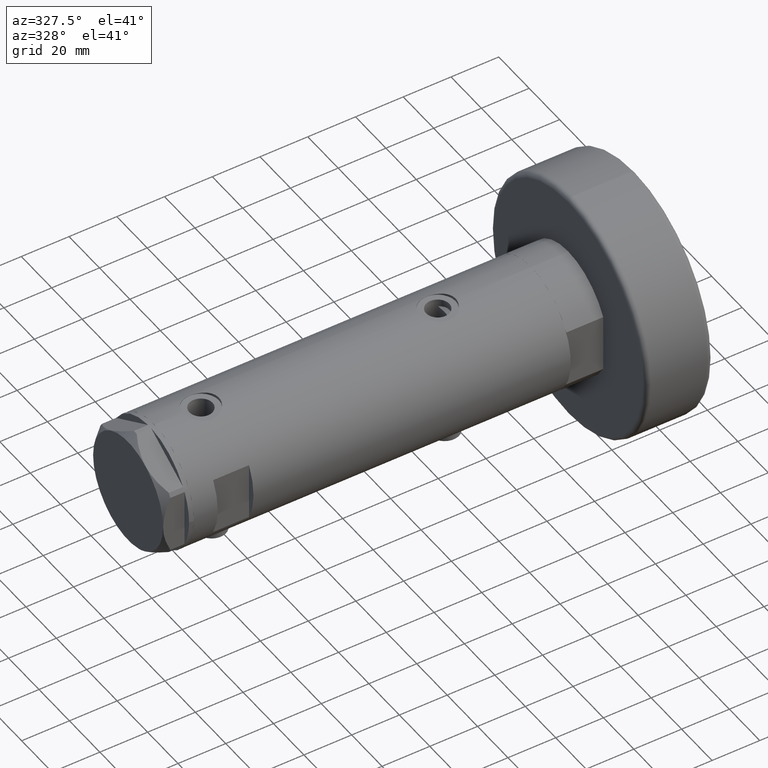
[diagram: clean part render]
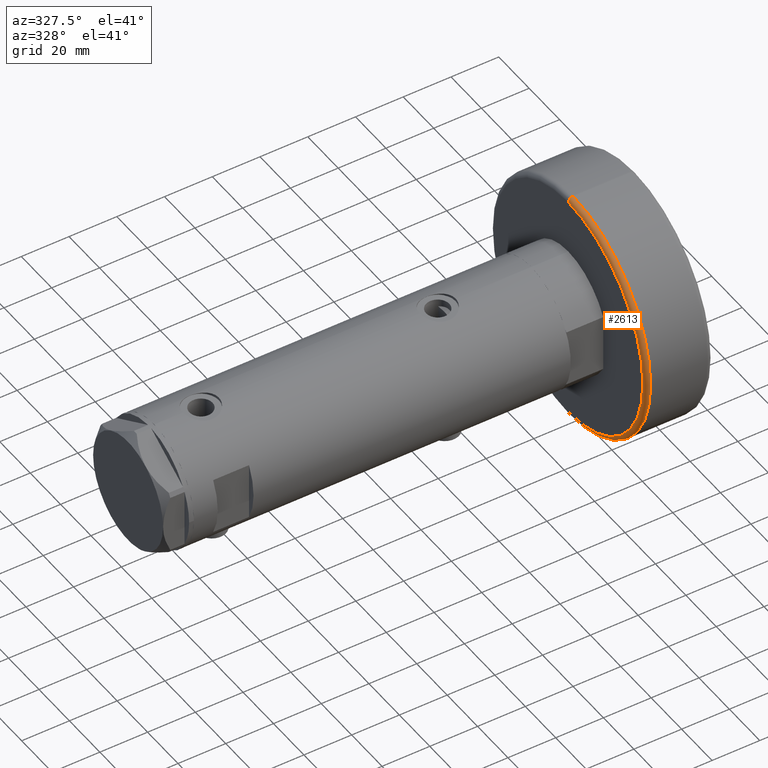
[diagram: same view with one face highlighted and labeled with its STEP entity id]
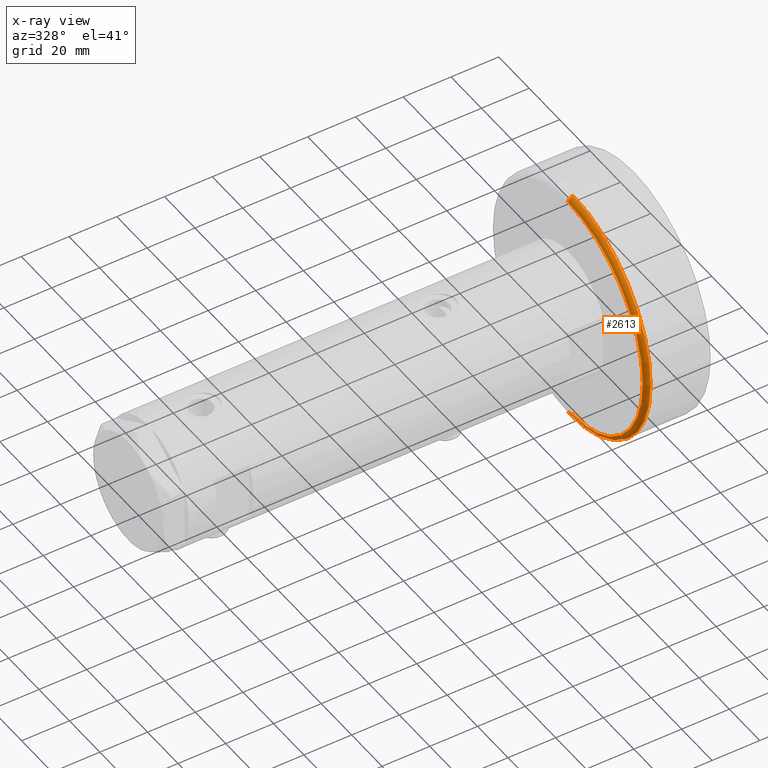
[diagram: x-ray of the same camera — body ghosted, the highlighted face saturated]
A machine part, auxiliary view. The second image highlights one B-rep face of the part: STEP entity #2613.
The next image is the same camera in x-ray: the body ghosted, the highlighted face saturated — about 0% of this face is hidden behind the body in this view.
In plain terms, the highlighted toroidal blend (fillet) surface has major radius 49 mm and minor (blend) radius 2 mm.
Its self-contained STEP definition (entity closure, byte-faithful):
#20 = CIRCLE ( 'NONE', #1141, 50.99999999999999289 ) ;
#290 = AXIS2_PLACEMENT_3D ( 'NONE', #3606, #4479, #1614 ) ;
#299 = EDGE_CURVE ( 'NONE', #320, #1852, #20, .T. ) ;
#303 = FACE_OUTER_BOUND ( 'NONE', #3673, .T. ) ;
#320 = VERTEX_POINT ( 'NONE', #2695 ) ;
#557 = TOROIDAL_SURFACE ( 'NONE', #1326, 48.99999999999998579, 2.000000000000000000 ) ;
#632 = CIRCLE ( 'NONE', #290, 2.000000000000001776 ) ;
#659 = DIRECTION ( 'NONE',  ( 1.000000000000000000, 0.000000000000000000, 0.000000000000000000 ) ) ;
#691 = CARTESIAN_POINT ( 'NONE',  ( 48.99999999999998579, 0.000000000000000000, 0.000000000000000000 ) ) ;
#738 = AXIS2_PLACEMENT_3D ( 'NONE', #3816, #1451, #5058 ) ;
#998 = CARTESIAN_POINT ( 'NONE',  ( -48.99999999999998579, 6.123233995736764507E-15, 0.000000000000000000 ) ) ;
#1141 = AXIS2_PLACEMENT_3D ( 'NONE', #4290, #1870, #3112 ) ;
#1326 = AXIS2_PLACEMENT_3D ( 'NONE', #3513, #3134, #659 ) ;
#1451 = DIRECTION ( 'NONE',  ( -0.000000000000000000, -0.000000000000000000, -1.000000000000000000 ) ) ;
#1614 = DIRECTION ( 'NONE',  ( -1.000000000000000000, 1.224646799147353454E-16, 0.000000000000000000 ) ) ;
#1852 = VERTEX_POINT ( 'NONE', #4563 ) ;
#1870 = DIRECTION ( 'NONE',  ( 0.000000000000000000, 0.000000000000000000, 1.000000000000000000 ) ) ;
#1872 = VERTEX_POINT ( 'NONE', #998 ) ;
#1894 = EDGE_CURVE ( 'NONE', #3651, #1852, #5186, .T. ) ;
#2205 = EDGE_CURVE ( 'NONE', #1872, #320, #632, .T. ) ;
#2613 = ADVANCED_FACE ( 'NONE', ( #303 ), #557, .T. ) ;
#2695 = CARTESIAN_POINT ( 'NONE',  ( -50.99999999999999289, 0.000000000000000000, 1.999999999999998224 ) ) ;
#2721 = ORIENTED_EDGE ( 'NONE', *, *, #4733, .F. ) ;
#2920 = CARTESIAN_POINT ( 'NONE',  ( 48.99999999999998579, 0.000000000000000000, 1.999999999999998224 ) ) ;
#3062 = ORIENTED_EDGE ( 'NONE', *, *, #299, .F. ) ;
#3112 = DIRECTION ( 'NONE',  ( 1.000000000000000000, 0.000000000000000000, 0.000000000000000000 ) ) ;
#3134 = DIRECTION ( 'NONE',  ( 0.000000000000000000, 0.000000000000000000, 1.000000000000000000 ) ) ;
#3373 = DIRECTION ( 'NONE',  ( 0.000000000000000000, -1.000000000000000000, 0.000000000000000000 ) ) ;
#3513 = CARTESIAN_POINT ( 'NONE',  ( 0.000000000000000000, 0.000000000000000000, 1.999999999999998224 ) ) ;
#3550 = ORIENTED_EDGE ( 'NONE', *, *, #2205, .F. ) ;
#3606 = CARTESIAN_POINT ( 'NONE',  ( -48.99999999999998579, 6.000769315822029359E-15, 1.999999999999998224 ) ) ;
#3612 = CIRCLE ( 'NONE', #738, 48.99999999999998579 ) ;
#3651 = VERTEX_POINT ( 'NONE', #691 ) ;
#3673 = EDGE_LOOP ( 'NONE', ( #3550, #2721, #4780, #3062 ) ) ;
#3816 = CARTESIAN_POINT ( 'NONE',  ( 0.000000000000000000, 0.000000000000000000, 0.000000000000000000 ) ) ;
#4171 = DIRECTION ( 'NONE',  ( 0.000000000000000000, 0.000000000000000000, -1.000000000000000000 ) ) ;
#4290 = CARTESIAN_POINT ( 'NONE',  ( 0.000000000000000000, 0.000000000000000000, 1.999999999999998224 ) ) ;
#4479 = DIRECTION ( 'NONE',  ( 1.224646799147353207E-16, 1.000000000000000000, -0.000000000000000000 ) ) ;
#4563 = CARTESIAN_POINT ( 'NONE',  ( 50.99999999999999289, 6.245698675651499656E-15, 1.999999999999998224 ) ) ;
#4733 = EDGE_CURVE ( 'NONE', #3651, #1872, #3612, .T. ) ;
#4780 = ORIENTED_EDGE ( 'NONE', *, *, #1894, .T. ) ;
#4929 = AXIS2_PLACEMENT_3D ( 'NONE', #2920, #3373, #4171 ) ;
#5058 = DIRECTION ( 'NONE',  ( 1.000000000000000000, 0.000000000000000000, 0.000000000000000000 ) ) ;
#5186 = CIRCLE ( 'NONE', #4929, 2.000000000000000000 ) ;